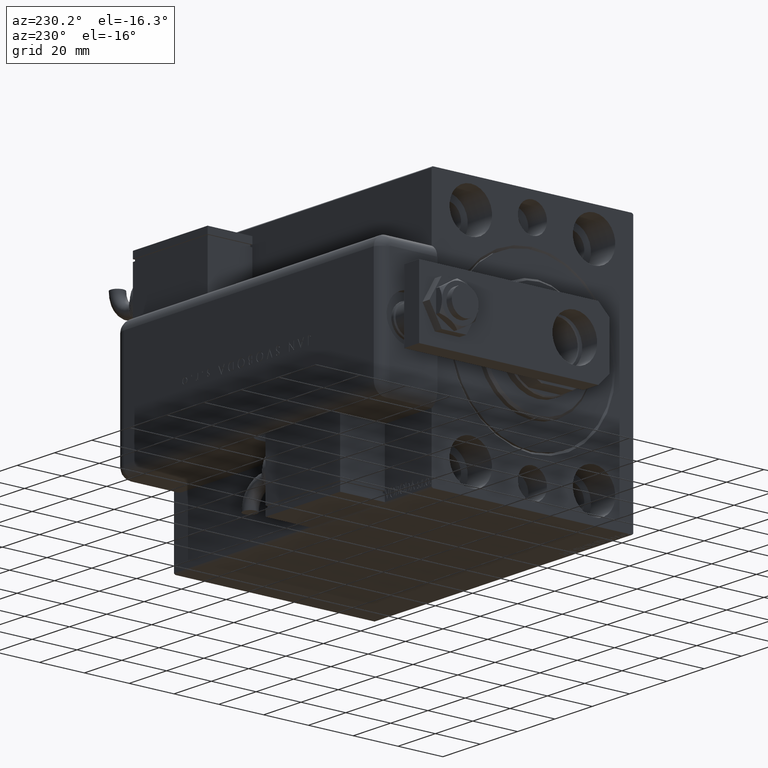
[diagram: clean part render]
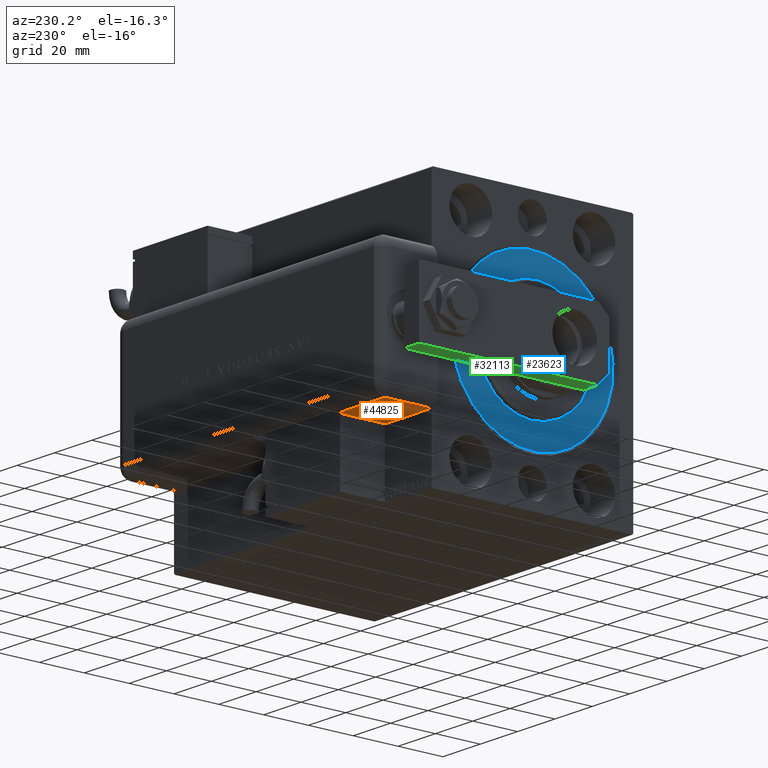
[diagram: same view with three faces highlighted in distinct colors, each labeled with its STEP entity id]
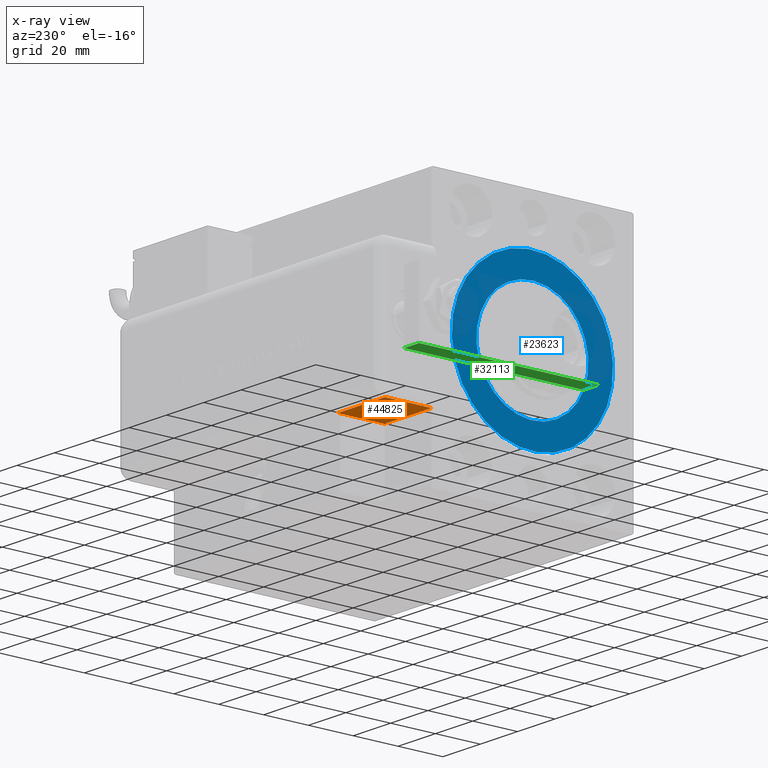
[diagram: x-ray of the same camera — body ghosted, the three highlighted faces saturated]
A machine part, auxiliary view with three faces highlighted in distinct colors.
The next image is the same camera in x-ray (body ghosted, the three faces saturated) — at least one of them is partly hidden behind the body in this view.
Their STEP definitions:

[orange] entity #44825 — the highlighted planar face has unit normal (0, 0, 1).
#1423 = LINE ( 'NONE', #19769, #29305 ) ;
#1723 = DIRECTION ( 'NONE',  ( -0.000000000000000000, 1.000000000000000000, -0.000000000000000000 ) ) ;
#1964 = EDGE_LOOP ( 'NONE', ( #43987, #22750, #48823, #59019 ) ) ;
#2590 = LINE ( 'NONE', #25169, #13066 ) ;
#2878 = DIRECTION ( 'NONE',  ( 0.000000000000000000, 0.000000000000000000, -1.000000000000000000 ) ) ;
#13066 = VECTOR ( 'NONE', #2878, 1000.000000000000000 ) ;
#13097 = DIRECTION ( 'NONE',  ( 0.000000000000000000, -1.000000000000000000, 0.000000000000000000 ) ) ;
#13477 = CARTESIAN_POINT ( 'NONE',  ( -28.99999999999999645, 25.79999999999998295, 139.0000000000000000 ) ) ;
#16479 = CARTESIAN_POINT ( 'NONE',  ( -28.99999999999999645, -9.421223957302265857E-15, 139.0000000000000000 ) ) ;
#16638 = VERTEX_POINT ( 'NONE', #49769 ) ;
#19769 = CARTESIAN_POINT ( 'NONE',  ( -28.99999999999999645, 22.99999999999998934, 114.0000000000000142 ) ) ;
#22201 = EDGE_CURVE ( 'NONE', #16638, #32525, #34848, .T. ) ;
#22750 = ORIENTED_EDGE ( 'NONE', *, *, #36978, .F. ) ;
#23095 = PLANE ( 'NONE',  #24141 ) ;
#24141 = AXIS2_PLACEMENT_3D ( 'NONE', #13477, #51379, #41463 ) ;
#25169 = CARTESIAN_POINT ( 'NONE',  ( -28.99999999999999645, 20.79999999999998295, 139.0000000000000000 ) ) ;
#29305 = VECTOR ( 'NONE', #1723, 1000.000000000000000 ) ;
#32525 = VERTEX_POINT ( 'NONE', #35443 ) ;
#32895 = VERTEX_POINT ( 'NONE', #48600 ) ;
#33725 = VECTOR ( 'NONE', #13097, 1000.000000000000000 ) ;
#34848 = LINE ( 'NONE', #16479, #50037 ) ;
#35443 = CARTESIAN_POINT ( 'NONE',  ( -28.99999999999999645, -9.421223957302265857E-15, 114.0000000000000142 ) ) ;
#36978 = EDGE_CURVE ( 'NONE', #32525, #32895, #1423, .T. ) ;
#38750 = VERTEX_POINT ( 'NONE', #56855 ) ;
#38772 = DIRECTION ( 'NONE',  ( -0.000000000000000000, -0.000000000000000000, -1.000000000000000000 ) ) ;
#39153 = EDGE_CURVE ( 'NONE', #38750, #32895, #2590, .T. ) ;
#40494 = LINE ( 'NONE', #59155, #33725 ) ;
#41463 = DIRECTION ( 'NONE',  ( -0.000000000000000000, 0.000000000000000000, -1.000000000000000000 ) ) ;
#43987 = ORIENTED_EDGE ( 'NONE', *, *, #39153, .T. ) ;
#44176 = EDGE_CURVE ( 'NONE', #38750, #16638, #40494, .T. ) ;
#44825 = ADVANCED_FACE ( 'NONE', ( #54726 ), #23095, .F. ) ;
#48600 = CARTESIAN_POINT ( 'NONE',  ( -28.99999999999999645, 20.79999999999998295, 114.0000000000000142 ) ) ;
#48823 = ORIENTED_EDGE ( 'NONE', *, *, #22201, .F. ) ;
#49769 = CARTESIAN_POINT ( 'NONE',  ( -28.99999999999999645, -9.421223957302265857E-15, 139.0000000000000000 ) ) ;
#50037 = VECTOR ( 'NONE', #38772, 1000.000000000000000 ) ;
#51379 = DIRECTION ( 'NONE',  ( 1.000000000000000000, 0.000000000000000000, -0.000000000000000000 ) ) ;
#54726 = FACE_OUTER_BOUND ( 'NONE', #1964, .T. ) ;
#56855 = CARTESIAN_POINT ( 'NONE',  ( -28.99999999999999645, 20.79999999999998295, 139.0000000000000000 ) ) ;
#59019 = ORIENTED_EDGE ( 'NONE', *, *, #44176, .F. ) ;
#59155 = CARTESIAN_POINT ( 'NONE',  ( -28.99999999999999645, 25.79999999999998295, 139.0000000000000000 ) ) ;

[blue] entity #23623 — the highlighted planar face has unit normal (1, 0, -0).
#1742 = AXIS2_PLACEMENT_3D ( 'NONE', #18042, #31889, #23146 ) ;
#2804 = DIRECTION ( 'NONE',  ( -1.000000000000000000, 0.000000000000000000, 0.000000000000000000 ) ) ;
#3695 = PLANE ( 'NONE',  #46243 ) ;
#4046 = CARTESIAN_POINT ( 'NONE',  ( 0.000000000000000000, 0.000000000000000000, -36.00000000000000000 ) ) ;
#4159 = EDGE_CURVE ( 'NONE', #10907, #12920, #7469, .T. ) ;
#4570 = EDGE_CURVE ( 'NONE', #12920, #10907, #37295, .T. ) ;
#5408 = AXIS2_PLACEMENT_3D ( 'NONE', #56947, #7254, #53610 ) ;
#7254 = DIRECTION ( 'NONE',  ( -1.000000000000000000, 0.000000000000000000, 0.000000000000000000 ) ) ;
#7469 = CIRCLE ( 'NONE', #17067, 25.00000000000000000 ) ;
#8292 = CIRCLE ( 'NONE', #5408, 36.00000000000000000 ) ;
#8309 = VERTEX_POINT ( 'NONE', #56563 ) ;
#8497 = CARTESIAN_POINT ( 'NONE',  ( 0.000000000000000000, 0.000000000000000000, 0.000000000000000000 ) ) ;
#10907 = VERTEX_POINT ( 'NONE', #46926 ) ;
#12920 = VERTEX_POINT ( 'NONE', #15884 ) ;
#15884 = CARTESIAN_POINT ( 'NONE',  ( 0.000000000000000000, 0.000000000000000000, 25.00000000000000000 ) ) ;
#17067 = AXIS2_PLACEMENT_3D ( 'NONE', #39222, #34700, #48822 ) ;
#18042 = CARTESIAN_POINT ( 'NONE',  ( 0.000000000000000000, 0.000000000000000000, 0.000000000000000000 ) ) ;
#19214 = CIRCLE ( 'NONE', #44225, 36.00000000000000000 ) ;
#19921 = EDGE_CURVE ( 'NONE', #8309, #54450, #19214, .T. ) ;
#19964 = ORIENTED_EDGE ( 'NONE', *, *, #40769, .F. ) ;
#23146 = DIRECTION ( 'NONE',  ( 0.000000000000000000, 0.000000000000000000, -1.000000000000000000 ) ) ;
#23623 = ADVANCED_FACE ( 'NONE', ( #53664, #58180 ), #3695, .F. ) ;
#23940 = EDGE_LOOP ( 'NONE', ( #43532, #57987 ) ) ;
#26266 = DIRECTION ( 'NONE',  ( 0.000000000000000000, 0.000000000000000000, 1.000000000000000000 ) ) ;
#31889 = DIRECTION ( 'NONE',  ( 1.000000000000000000, -0.000000000000000000, 0.000000000000000000 ) ) ;
#34700 = DIRECTION ( 'NONE',  ( 1.000000000000000000, -0.000000000000000000, 0.000000000000000000 ) ) ;
#35041 = DIRECTION ( 'NONE',  ( -1.000000000000000000, 0.000000000000000000, 0.000000000000000000 ) ) ;
#37295 = CIRCLE ( 'NONE', #1742, 25.00000000000000000 ) ;
#39222 = CARTESIAN_POINT ( 'NONE',  ( 0.000000000000000000, 0.000000000000000000, 0.000000000000000000 ) ) ;
#40769 = EDGE_CURVE ( 'NONE', #54450, #8309, #8292, .T. ) ;
#42791 = EDGE_LOOP ( 'NONE', ( #19964, #50162 ) ) ;
#43532 = ORIENTED_EDGE ( 'NONE', *, *, #4570, .F. ) ;
#44225 = AXIS2_PLACEMENT_3D ( 'NONE', #58514, #35041, #53392 ) ;
#46243 = AXIS2_PLACEMENT_3D ( 'NONE', #8497, #2804, #26266 ) ;
#46926 = CARTESIAN_POINT ( 'NONE',  ( 0.000000000000000000, 3.061616997868383043E-15, -25.00000000000000000 ) ) ;
#48822 = DIRECTION ( 'NONE',  ( 0.000000000000000000, 0.000000000000000000, -1.000000000000000000 ) ) ;
#50162 = ORIENTED_EDGE ( 'NONE', *, *, #19921, .F. ) ;
#53392 = DIRECTION ( 'NONE',  ( 0.000000000000000000, 0.000000000000000000, 1.000000000000000000 ) ) ;
#53610 = DIRECTION ( 'NONE',  ( 0.000000000000000000, 0.000000000000000000, 1.000000000000000000 ) ) ;
#53664 = FACE_BOUND ( 'NONE', #23940, .T. ) ;
#54450 = VERTEX_POINT ( 'NONE', #4046 ) ;
#56563 = CARTESIAN_POINT ( 'NONE',  ( 0.000000000000000000, 4.408728476930470856E-15, 36.00000000000000000 ) ) ;
#56947 = CARTESIAN_POINT ( 'NONE',  ( 0.000000000000000000, 0.000000000000000000, 0.000000000000000000 ) ) ;
#57987 = ORIENTED_EDGE ( 'NONE', *, *, #4159, .F. ) ;
#58180 = FACE_OUTER_BOUND ( 'NONE', #42791, .T. ) ;
#58514 = CARTESIAN_POINT ( 'NONE',  ( 0.000000000000000000, 0.000000000000000000, 0.000000000000000000 ) ) ;

[green] entity #32113 — the highlighted planar face has unit normal (0, -0, 1).
#402 = CARTESIAN_POINT ( 'NONE',  ( 15.00000000000000888, 9.629649721936179265E-32, 8.000000000000000000 ) ) ;
#1376 = ORIENTED_EDGE ( 'NONE', *, *, #29203, .F. ) ;
#4472 = CARTESIAN_POINT ( 'NONE',  ( 15.00000000000000178, 85.00000000000000000, 8.000000000000000000 ) ) ;
#5203 = PLANE ( 'NONE',  #48427 ) ;
#5507 = DIRECTION ( 'NONE',  ( -1.000000000000000000, -8.163404592832032733E-17, 0.000000000000000000 ) ) ;
#5915 = VECTOR ( 'NONE', #15796, 1000.000000000000000 ) ;
#10981 = LINE ( 'NONE', #16092, #5915 ) ;
#11360 = LINE ( 'NONE', #17354, #35962 ) ;
#13380 = EDGE_CURVE ( 'NONE', #55871, #44820, #58830, .T. ) ;
#13769 = CARTESIAN_POINT ( 'NONE',  ( 15.00000000000000888, 4.999999999999990230, 0.000000000000000000 ) ) ;
#15796 = DIRECTION ( 'NONE',  ( -0.000000000000000000, -0.000000000000000000, -1.000000000000000000 ) ) ;
#16092 = CARTESIAN_POINT ( 'NONE',  ( 15.00000000000000178, 85.00000000000000000, 8.000000000000000000 ) ) ;
#17354 = CARTESIAN_POINT ( 'NONE',  ( 15.00000000000000888, 9.629649721936179265E-32, 0.000000000000000000 ) ) ;
#18750 = FACE_OUTER_BOUND ( 'NONE', #41902, .T. ) ;
#20284 = VERTEX_POINT ( 'NONE', #4472 ) ;
#20587 = LINE ( 'NONE', #57610, #35862 ) ;
#21565 = DIRECTION ( 'NONE',  ( -8.163404592832032733E-17, 1.000000000000000000, 0.000000000000000000 ) ) ;
#23714 = ORIENTED_EDGE ( 'NONE', *, *, #53164, .T. ) ;
#23913 = VECTOR ( 'NONE', #32021, 1000.000000000000000 ) ;
#27139 = VERTEX_POINT ( 'NONE', #36497 ) ;
#29203 = EDGE_CURVE ( 'NONE', #55871, #20284, #20587, .T. ) ;
#32021 = DIRECTION ( 'NONE',  ( 0.000000000000000000, 0.000000000000000000, -1.000000000000000000 ) ) ;
#32113 = ADVANCED_FACE ( 'NONE', ( #18750 ), #5203, .F. ) ;
#32610 = DIRECTION ( 'NONE',  ( 8.163404592832032733E-17, -1.000000000000000000, 0.000000000000000000 ) ) ;
#35862 = VECTOR ( 'NONE', #44656, 1000.000000000000000 ) ;
#35962 = VECTOR ( 'NONE', #21565, 1000.000000000000000 ) ;
#36497 = CARTESIAN_POINT ( 'NONE',  ( 15.00000000000000178, 85.00000000000000000, 0.000000000000000000 ) ) ;
#36831 = CARTESIAN_POINT ( 'NONE',  ( 15.00000000000000888, 4.999999999999990230, 8.000000000000000000 ) ) ;
#41902 = EDGE_LOOP ( 'NONE', ( #1376, #48357, #23714, #53675 ) ) ;
#42686 = EDGE_CURVE ( 'NONE', #20284, #27139, #10981, .T. ) ;
#44656 = DIRECTION ( 'NONE',  ( -8.163404592832032733E-17, 1.000000000000000000, 0.000000000000000000 ) ) ;
#44820 = VERTEX_POINT ( 'NONE', #13769 ) ;
#48357 = ORIENTED_EDGE ( 'NONE', *, *, #13380, .T. ) ;
#48427 = AXIS2_PLACEMENT_3D ( 'NONE', #402, #5507, #32610 ) ;
#49949 = CARTESIAN_POINT ( 'NONE',  ( 15.00000000000000888, 4.999999999999990230, 8.000000000000000000 ) ) ;
#53164 = EDGE_CURVE ( 'NONE', #44820, #27139, #11360, .T. ) ;
#53675 = ORIENTED_EDGE ( 'NONE', *, *, #42686, .F. ) ;
#55871 = VERTEX_POINT ( 'NONE', #49949 ) ;
#57610 = CARTESIAN_POINT ( 'NONE',  ( 15.00000000000000888, 9.629649721936179265E-32, 8.000000000000000000 ) ) ;
#58830 = LINE ( 'NONE', #36831, #23913 ) ;